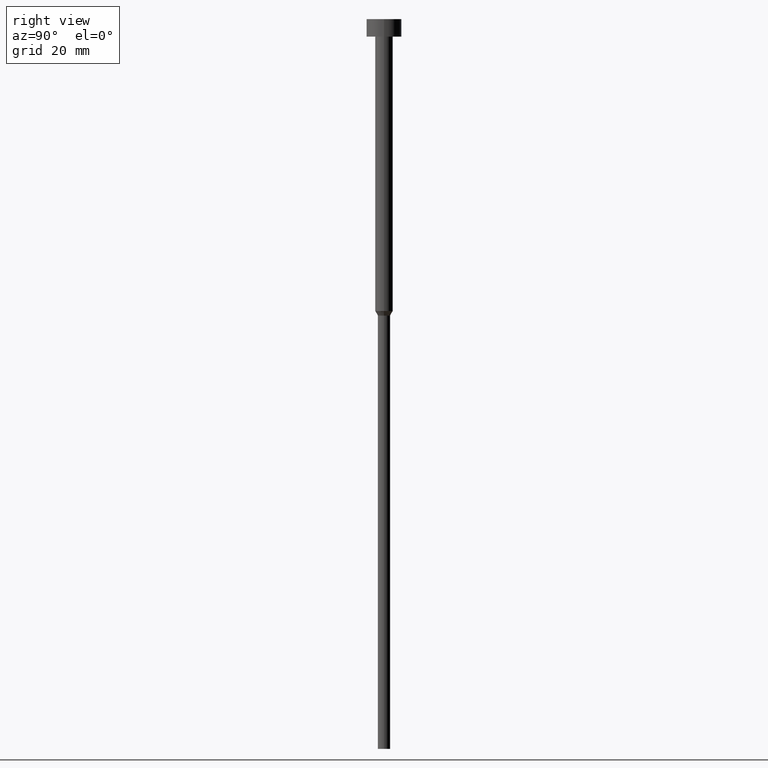
[diagram: clean part render]
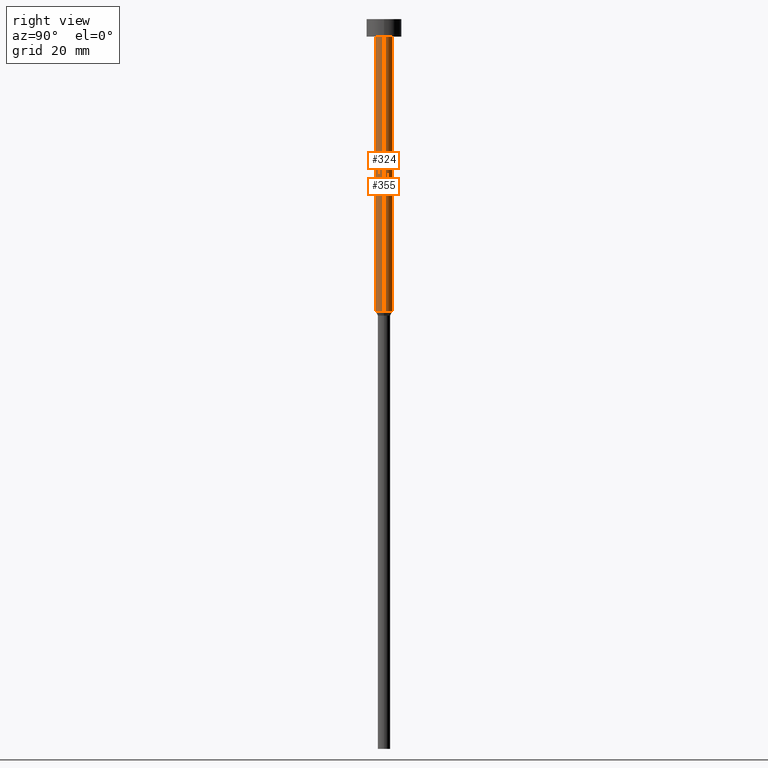
[diagram: same view with one multi-face feature highlighted, each face labeled with its STEP entity id]
A machine part, right view. The highlighted faces form ONE feature: a constant-radius fillet chain: 2 tangent blend faces with common blend radius 1.5 mm. The faces share edges in the B-rep.
Their STEP definitions:
[1] entity #324 (Cylinder):
#1 = VECTOR ( 'NONE', #127, 1000.000000000000000 ) ;
#6 = EDGE_CURVE ( 'NONE', #198, #338, #262, .T. ) ;
#11 = VERTEX_POINT ( 'NONE', #27 ) ;
#25 = DIRECTION ( 'NONE',  ( -0.000000000000000000, -0.000000000000000000, 1.000000000000000000 ) ) ;
#27 = CARTESIAN_POINT ( 'NONE',  ( 1.500000000000000000, 0.000000000000000000, -3.000000000000000888 ) ) ;
#28 = AXIS2_PLACEMENT_3D ( 'NONE', #322, #266, #130 ) ;
#35 = AXIS2_PLACEMENT_3D ( 'NONE', #135, #105, #156 ) ;
#42 = ORIENTED_EDGE ( 'NONE', *, *, #120, .F. ) ;
#50 = EDGE_CURVE ( 'NONE', #198, #243, #102, .T. ) ;
#55 = EDGE_CURVE ( 'NONE', #338, #11, #109, .T. ) ;
#61 = CARTESIAN_POINT ( 'NONE',  ( 1.500000000000000000, 0.000000000000000000, -50.00000000000000000 ) ) ;
#68 = CARTESIAN_POINT ( 'NONE',  ( -1.500000000000000000, 1.836970198721029934E-16, -50.00000000000000000 ) ) ;
#71 = ORIENTED_EDGE ( 'NONE', *, *, #50, .F. ) ;
#79 = CARTESIAN_POINT ( 'NONE',  ( -1.500000000000000000, 1.836970198721029934E-16, 0.000000000000000000 ) ) ;
#86 = DIRECTION ( 'NONE',  ( 1.000000000000000000, 0.000000000000000000, 0.000000000000000000 ) ) ;
#90 = FACE_OUTER_BOUND ( 'NONE', #258, .T. ) ;
#102 = LINE ( 'NONE', #79, #159 ) ;
#105 = DIRECTION ( 'NONE',  ( -0.000000000000000000, -0.000000000000000000, 1.000000000000000000 ) ) ;
#109 = LINE ( 'NONE', #136, #1 ) ;
#117 = CYLINDRICAL_SURFACE ( 'NONE', #188, 1.500000000000000000 ) ;
#120 = EDGE_CURVE ( 'NONE', #243, #11, #186, .T. ) ;
#127 = DIRECTION ( 'NONE',  ( -0.000000000000000000, -0.000000000000000000, 1.000000000000000000 ) ) ;
#130 = DIRECTION ( 'NONE',  ( 1.000000000000000000, 0.000000000000000000, 0.000000000000000000 ) ) ;
#135 = CARTESIAN_POINT ( 'NONE',  ( 0.000000000000000000, 0.000000000000000000, -3.000000000000000888 ) ) ;
#136 = CARTESIAN_POINT ( 'NONE',  ( 1.500000000000000000, 0.000000000000000000, 0.000000000000000000 ) ) ;
#156 = DIRECTION ( 'NONE',  ( 1.000000000000000000, 0.000000000000000000, 0.000000000000000000 ) ) ;
#159 = VECTOR ( 'NONE', #25, 1000.000000000000000 ) ;
#186 = CIRCLE ( 'NONE', #35, 1.500000000000000000 ) ;
#188 = AXIS2_PLACEMENT_3D ( 'NONE', #196, #254, #86 ) ;
#196 = CARTESIAN_POINT ( 'NONE',  ( 0.000000000000000000, 0.000000000000000000, 0.000000000000000000 ) ) ;
#198 = VERTEX_POINT ( 'NONE', #68 ) ;
#243 = VERTEX_POINT ( 'NONE', #336 ) ;
#254 = DIRECTION ( 'NONE',  ( -0.000000000000000000, -0.000000000000000000, 1.000000000000000000 ) ) ;
#258 = EDGE_LOOP ( 'NONE', ( #71, #309, #307, #42 ) ) ;
#262 = CIRCLE ( 'NONE', #28, 1.500000000000000000 ) ;
#266 = DIRECTION ( 'NONE',  ( -0.000000000000000000, -0.000000000000000000, 1.000000000000000000 ) ) ;
#307 = ORIENTED_EDGE ( 'NONE', *, *, #55, .T. ) ;
#309 = ORIENTED_EDGE ( 'NONE', *, *, #6, .T. ) ;
#322 = CARTESIAN_POINT ( 'NONE',  ( 0.000000000000000000, 0.000000000000000000, -50.00000000000000000 ) ) ;
#324 = ADVANCED_FACE ( 'NONE', ( #90 ), #117, .T. ) ;
#336 = CARTESIAN_POINT ( 'NONE',  ( -1.500000000000000000, 1.836970198721029934E-16, -3.000000000000000888 ) ) ;
#338 = VERTEX_POINT ( 'NONE', #61 ) ;
[2] entity #355 (Cylinder):
#1 = VECTOR ( 'NONE', #127, 1000.000000000000000 ) ;
#11 = VERTEX_POINT ( 'NONE', #27 ) ;
#20 = EDGE_CURVE ( 'NONE', #338, #198, #216, .T. ) ;
#25 = DIRECTION ( 'NONE',  ( -0.000000000000000000, -0.000000000000000000, 1.000000000000000000 ) ) ;
#27 = CARTESIAN_POINT ( 'NONE',  ( 1.500000000000000000, 0.000000000000000000, -3.000000000000000888 ) ) ;
#44 = EDGE_CURVE ( 'NONE', #11, #243, #255, .T. ) ;
#50 = EDGE_CURVE ( 'NONE', #198, #243, #102, .T. ) ;
#55 = EDGE_CURVE ( 'NONE', #338, #11, #109, .T. ) ;
#61 = CARTESIAN_POINT ( 'NONE',  ( 1.500000000000000000, 0.000000000000000000, -50.00000000000000000 ) ) ;
#68 = CARTESIAN_POINT ( 'NONE',  ( -1.500000000000000000, 1.836970198721029934E-16, -50.00000000000000000 ) ) ;
#70 = DIRECTION ( 'NONE',  ( -0.000000000000000000, -0.000000000000000000, 1.000000000000000000 ) ) ;
#78 = EDGE_LOOP ( 'NONE', ( #331, #225, #203, #179 ) ) ;
#79 = CARTESIAN_POINT ( 'NONE',  ( -1.500000000000000000, 1.836970198721029934E-16, 0.000000000000000000 ) ) ;
#80 = CYLINDRICAL_SURFACE ( 'NONE', #104, 1.500000000000000000 ) ;
#102 = LINE ( 'NONE', #79, #159 ) ;
#104 = AXIS2_PLACEMENT_3D ( 'NONE', #129, #70, #204 ) ;
#106 = AXIS2_PLACEMENT_3D ( 'NONE', #297, #238, #165 ) ;
#109 = LINE ( 'NONE', #136, #1 ) ;
#110 = DIRECTION ( 'NONE',  ( 1.000000000000000000, 0.000000000000000000, 0.000000000000000000 ) ) ;
#127 = DIRECTION ( 'NONE',  ( -0.000000000000000000, -0.000000000000000000, 1.000000000000000000 ) ) ;
#129 = CARTESIAN_POINT ( 'NONE',  ( 0.000000000000000000, 0.000000000000000000, 0.000000000000000000 ) ) ;
#136 = CARTESIAN_POINT ( 'NONE',  ( 1.500000000000000000, 0.000000000000000000, 0.000000000000000000 ) ) ;
#159 = VECTOR ( 'NONE', #25, 1000.000000000000000 ) ;
#165 = DIRECTION ( 'NONE',  ( 1.000000000000000000, 0.000000000000000000, 0.000000000000000000 ) ) ;
#179 = ORIENTED_EDGE ( 'NONE', *, *, #55, .F. ) ;
#198 = VERTEX_POINT ( 'NONE', #68 ) ;
#203 = ORIENTED_EDGE ( 'NONE', *, *, #44, .F. ) ;
#204 = DIRECTION ( 'NONE',  ( 1.000000000000000000, 0.000000000000000000, 0.000000000000000000 ) ) ;
#213 = CARTESIAN_POINT ( 'NONE',  ( 0.000000000000000000, 0.000000000000000000, -50.00000000000000000 ) ) ;
#216 = CIRCLE ( 'NONE', #329, 1.500000000000000000 ) ;
#225 = ORIENTED_EDGE ( 'NONE', *, *, #50, .T. ) ;
#228 = FACE_OUTER_BOUND ( 'NONE', #78, .T. ) ;
#238 = DIRECTION ( 'NONE',  ( -0.000000000000000000, -0.000000000000000000, 1.000000000000000000 ) ) ;
#243 = VERTEX_POINT ( 'NONE', #336 ) ;
#255 = CIRCLE ( 'NONE', #106, 1.500000000000000000 ) ;
#267 = DIRECTION ( 'NONE',  ( -0.000000000000000000, -0.000000000000000000, 1.000000000000000000 ) ) ;
#297 = CARTESIAN_POINT ( 'NONE',  ( 0.000000000000000000, 0.000000000000000000, -3.000000000000000888 ) ) ;
#329 = AXIS2_PLACEMENT_3D ( 'NONE', #213, #267, #110 ) ;
#331 = ORIENTED_EDGE ( 'NONE', *, *, #20, .T. ) ;
#336 = CARTESIAN_POINT ( 'NONE',  ( -1.500000000000000000, 1.836970198721029934E-16, -3.000000000000000888 ) ) ;
#338 = VERTEX_POINT ( 'NONE', #61 ) ;
#355 = ADVANCED_FACE ( 'NONE', ( #228 ), #80, .T. ) ;